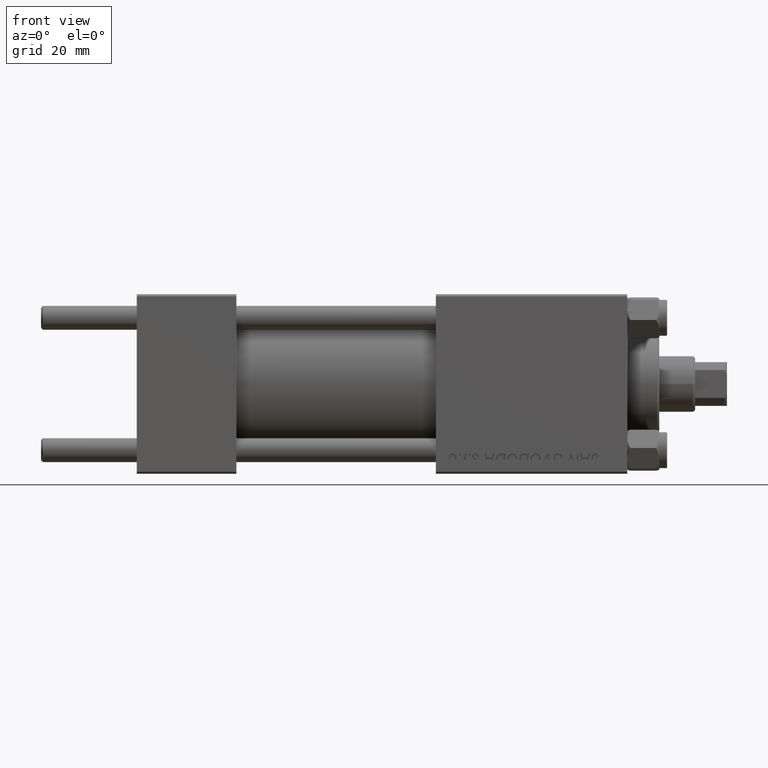
[diagram: clean part render]
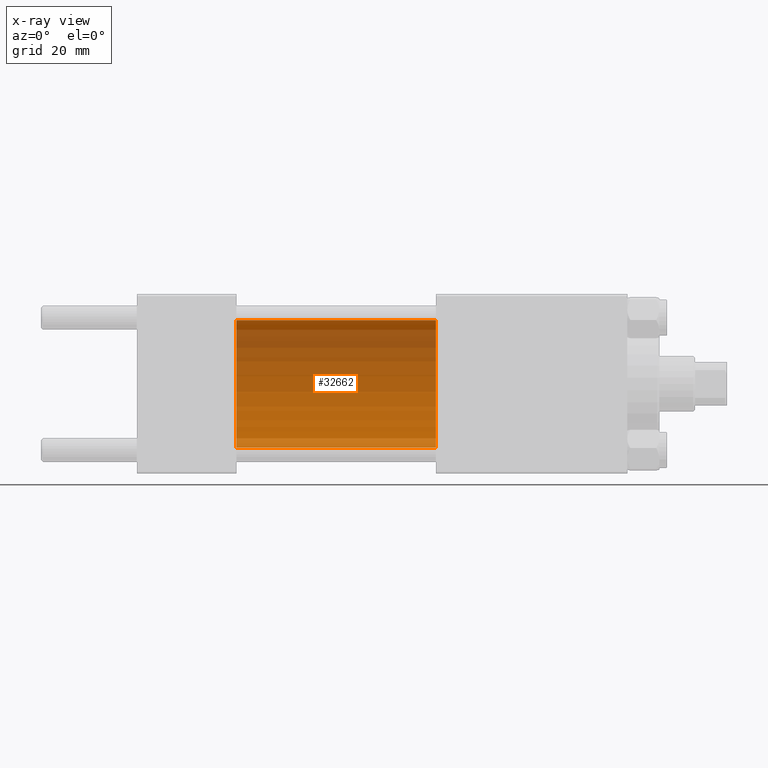
[diagram: x-ray — body ghosted, one internal face saturated and labeled with its STEP entity id]
A machine part, front view, then the same camera in x-ray: the body is ghosted and one INTERNAL B-rep face — a face not visible from any outside direction — is saturated and labeled: STEP entity #32662.
In plain terms, the highlighted cylindrical surface (partial cylindrical patch) has radius 16 mm, axis along (-1, -0, -0).
Its self-contained STEP definition (entity closure, byte-faithful):
#497 = ORIENTED_EDGE ( 'NONE', *, *, #25135, .T. ) ;
#5018 = DIRECTION ( 'NONE',  ( 0.000000000000000000, 0.000000000000000000, -1.000000000000000000 ) ) ;
#8867 = CARTESIAN_POINT ( 'NONE',  ( 25.00000000000000000, 0.000000000000000000, 0.000000000000000000 ) ) ;
#10924 = VERTEX_POINT ( 'NONE', #47830 ) ;
#16728 = FACE_OUTER_BOUND ( 'NONE', #32446, .T. ) ;
#17606 = DIRECTION ( 'NONE',  ( -1.000000000000000000, -0.000000000000000000, -0.000000000000000000 ) ) ;
#18165 = CARTESIAN_POINT ( 'NONE',  ( 25.00000000000000000, 1.959434878635765131E-15, -16.00000000000000000 ) ) ;
#19049 = CARTESIAN_POINT ( 'NONE',  ( 75.00000000000001421, 0.000000000000000000, 16.00000000000000000 ) ) ;
#20014 = DIRECTION ( 'NONE',  ( 1.000000000000000000, 0.000000000000000000, 0.000000000000000000 ) ) ;
#21022 = CARTESIAN_POINT ( 'NONE',  ( 75.00000000000001421, 0.000000000000000000, 0.000000000000000000 ) ) ;
#21665 = CARTESIAN_POINT ( 'NONE',  ( 75.00000000000001421, 1.959434878635765131E-15, -16.00000000000000000 ) ) ;
#23372 = AXIS2_PLACEMENT_3D ( 'NONE', #21022, #28871, #29372 ) ;
#24575 = CYLINDRICAL_SURFACE ( 'NONE', #23372, 16.00000000000000000 ) ;
#25135 = EDGE_CURVE ( 'NONE', #30258, #49682, #29722, .T. ) ;
#26486 = ORIENTED_EDGE ( 'NONE', *, *, #41258, .F. ) ;
#26870 = AXIS2_PLACEMENT_3D ( 'NONE', #8867, #20014, #39970 ) ;
#27293 = EDGE_CURVE ( 'NONE', #10924, #39623, #36847, .T. ) ;
#28284 = CIRCLE ( 'NONE', #34746, 16.00000000000000000 ) ;
#28871 = DIRECTION ( 'NONE',  ( -1.000000000000000000, -0.000000000000000000, -0.000000000000000000 ) ) ;
#28952 = ORIENTED_EDGE ( 'NONE', *, *, #35663, .T. ) ;
#29372 = DIRECTION ( 'NONE',  ( 0.000000000000000000, 0.000000000000000000, 1.000000000000000000 ) ) ;
#29722 = LINE ( 'NONE', #45149, #38473 ) ;
#30258 = VERTEX_POINT ( 'NONE', #19049 ) ;
#32446 = EDGE_LOOP ( 'NONE', ( #38116, #28952, #497, #26486 ) ) ;
#32662 = ADVANCED_FACE ( 'NONE', ( #16728 ), #24575, .F. ) ;
#34016 = DIRECTION ( 'NONE',  ( -1.000000000000000000, -0.000000000000000000, -0.000000000000000000 ) ) ;
#34746 = AXIS2_PLACEMENT_3D ( 'NONE', #47756, #40153, #5018 ) ;
#35663 = EDGE_CURVE ( 'NONE', #10924, #30258, #28284, .T. ) ;
#36847 = LINE ( 'NONE', #21665, #39344 ) ;
#38116 = ORIENTED_EDGE ( 'NONE', *, *, #27293, .F. ) ;
#38473 = VECTOR ( 'NONE', #34016, 1000.000000000000000 ) ;
#39344 = VECTOR ( 'NONE', #17606, 1000.000000000000000 ) ;
#39623 = VERTEX_POINT ( 'NONE', #18165 ) ;
#39970 = DIRECTION ( 'NONE',  ( 0.000000000000000000, 0.000000000000000000, -1.000000000000000000 ) ) ;
#40153 = DIRECTION ( 'NONE',  ( 1.000000000000000000, 0.000000000000000000, 0.000000000000000000 ) ) ;
#41258 = EDGE_CURVE ( 'NONE', #39623, #49682, #45472, .T. ) ;
#45149 = CARTESIAN_POINT ( 'NONE',  ( 75.00000000000001421, 0.000000000000000000, 16.00000000000000000 ) ) ;
#45472 = CIRCLE ( 'NONE', #26870, 16.00000000000000000 ) ;
#47601 = CARTESIAN_POINT ( 'NONE',  ( 25.00000000000000000, 0.000000000000000000, 16.00000000000000000 ) ) ;
#47756 = CARTESIAN_POINT ( 'NONE',  ( 75.00000000000001421, 0.000000000000000000, 0.000000000000000000 ) ) ;
#47830 = CARTESIAN_POINT ( 'NONE',  ( 75.00000000000001421, 1.959434878635765131E-15, -16.00000000000000000 ) ) ;
#49682 = VERTEX_POINT ( 'NONE', #47601 ) ;